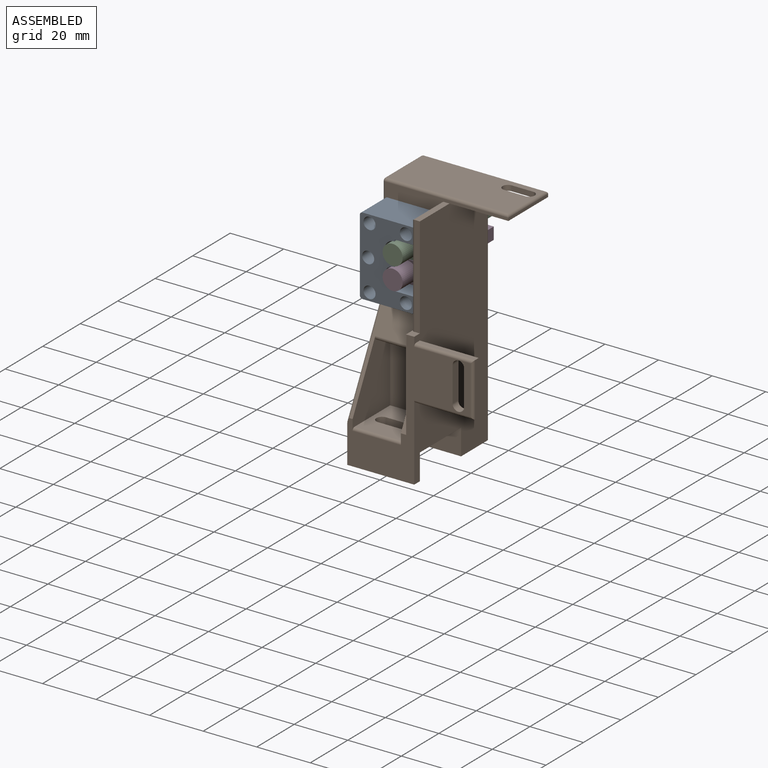
[diagram: assembled view]
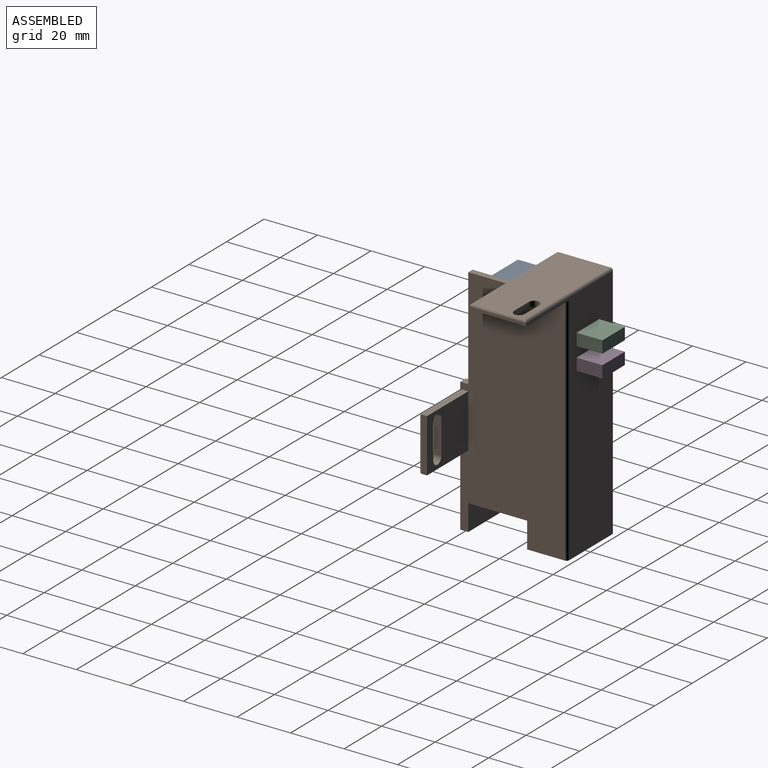
[diagram: assembled view, second angle]
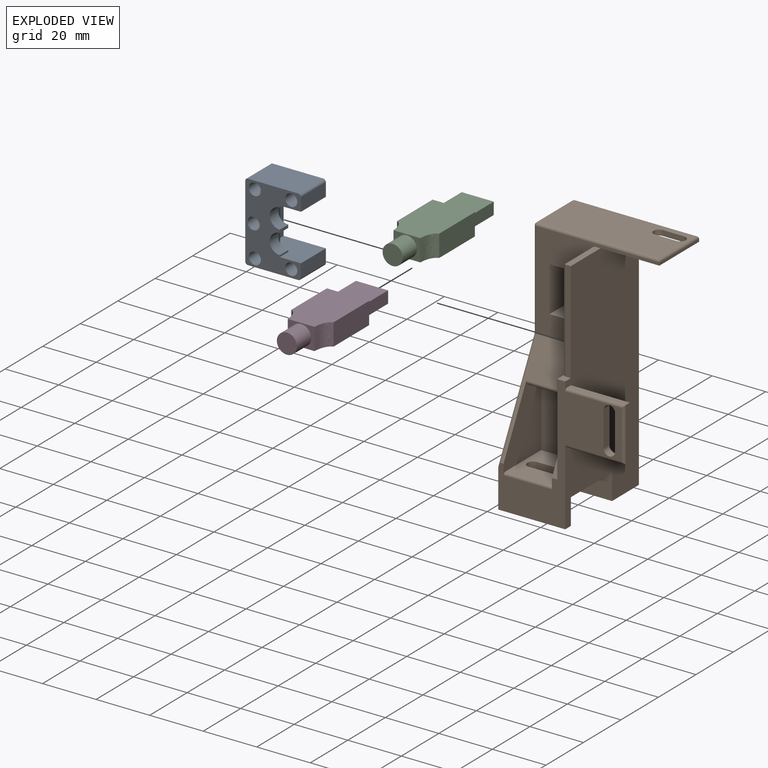
[diagram: exploded view]
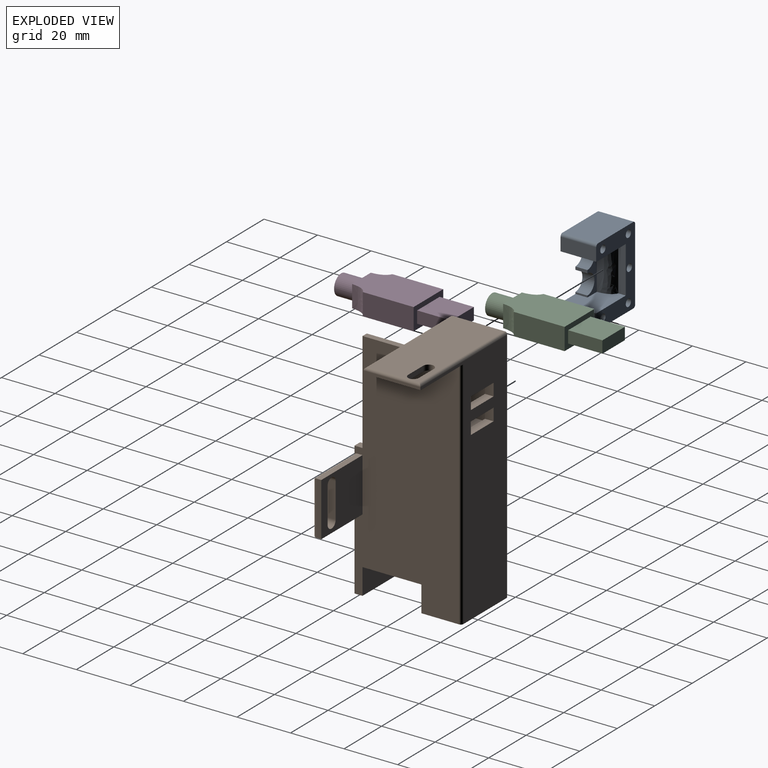
[diagram: exploded view, second angle]
ASSEMBLY  parts=4 mates=2
PART A: 36 faces, bbox 20.8x13.3x29.2 mm
  f0: extruded ~17.4x6mm, area 122.2mm2, adj f3,f5,f6,f14
  f1: plane 13.3x4.9mm, normal (-1,0,0), area 65.2mm2, adj f2,f3,f13,f34
  f2: plane 29.2x20.8mm, normal (0,-1,0), area 300.8mm2, adj f1,f3,f4,f5,f12,f14,f15,f16
  f3: plane 15.8x13.3mm, normal (0,0,-1), area 161.7mm2, adj f0,f1,f2,f6,f11,f13,f14
  f4: plane 13.3x4.9mm, normal (-1,0,0), area 65.2mm2, adj f2,f5,f13,f32
  f5: plane 15.8x13.3mm, normal (0,0,1), area 161.7mm2, adj f0,f2,f4,f6,f7,f13,f14
  f6: plane 17.4x5mm, normal (0,-1,0), area 42.8mm2, adj f0,f3,f5,f7,f8,f9,f10,f11
  f7: plane 4.5x0.65mm, normal (-1,0,0), area 2.9mm2, adj f5,f6,f8,f13
  f8: cylinder r=3.75mm len=7.5mm, axis (0,-1,0), area 53mm2, adj f6,f7,f9,f13
  f9: plane 4.5x1.1mm, normal (-1,0,0), area 5mm2, adj f6,f8,f10,f13
  f10: cylinder r=3.75mm len=7.5mm, axis (0,-1,0), area 53mm2, adj f6,f9,f11,f13
  f11: plane 4.5x0.65mm, normal (-1,0,0), area 2.9mm2, adj f3,f6,f10,f13
  f12: plane 27.2x13.3mm, normal (1,0,0), area 361.8mm2, adj f2,f13,f33,f35
  f13: plane 29.2x20.8mm, normal (0,1,0), area 345.3mm2, adj f1,f3,f4,f5,f7,f8,f9,f10
  f14: plane 17.4x2.8mm, normal (-1,0,0), area 48.7mm2, adj f0,f2,f3,f5
  f15: plane 18.8x13.3mm, normal (0,0,-1), area 250mm2, adj f2,f13,f32,f33
  f16: plane 18.8x13.3mm, normal (0,0,1), area 250mm2, adj f2,f13,f34,f35
  f17: cylinder r=2.25mm len=9.8mm, axis (0,1,0), area 138.5mm2, adj f13,f18
  f18: plane 4.5x4.5mm, normal (0,1,0), area 9.7mm2, adj f17,f31
  f19: cylinder r=2.25mm len=9.8mm, axis (0,1,0), area 138.5mm2, adj f13,f20
  f20: plane 4.5x4.5mm, normal (0,1,0), area 9.7mm2, adj f19,f30
  f21: cylinder r=2.25mm len=9.8mm, axis (0,1,0), area 138.5mm2, adj f13,f22
  f22: plane 4.5x4.5mm, normal (0,1,0), area 9.7mm2, adj f21,f29
  f23: cylinder r=2.25mm len=9.8mm, axis (0,1,0), area 138.5mm2, adj f13,f24
  f24: plane 4.5x4.5mm, normal (0,1,0), area 9.7mm2, adj f23,f28
  f25: cylinder r=2.25mm len=9.8mm, axis (0,1,0), area 138.5mm2, adj f13,f26
  f26: plane 4.5x4.5mm, normal (0,1,0), area 9.7mm2, adj f25,f27
  f27: cylinder r=1.4mm len=3.5mm, axis (0,1,0), area 30.8mm2, adj f2,f26
  f28: cylinder r=1.4mm len=3.5mm, axis (0,1,0), area 30.8mm2, adj f2,f24
  f29: cylinder r=1.4mm len=3.5mm, axis (0,1,0), area 30.8mm2, adj f2,f22
  f30: cylinder r=1.4mm len=3.5mm, axis (0,1,0), area 30.8mm2, adj f2,f20
  f31: cylinder r=1.4mm len=3.5mm, axis (0,1,0), area 30.8mm2, adj f2,f18
  f32: cylinder r=1mm len=13.3mm, axis (0,1,0), area 20.9mm2, adj f2,f4,f13,f15
  f33: cylinder r=1mm len=13.3mm, axis (0,1,0), area 20.9mm2, adj f2,f12,f13,f15
  f34: cylinder r=1mm len=13.3mm, axis (0,-1,0), area 20.9mm2, adj f1,f2,f13,f16
  f35: cylinder r=1mm len=13.3mm, axis (0,-1,0), area 20.9mm2, adj f2,f12,f13,f16
PART B: 68 faces, bbox 47x40.9x89.7 mm
  f0: plane 15.8x2mm, normal (0,0,1), area 31.6mm2, adj f3,f6,f26,f65
  f1: plane 49.9x46mm, normal (0,-1,0), area 736.8mm2, adj f2,f3,f4,f5,f8,f10,f30,f31
  f2: plane 36.4x21mm, normal (0,-0.89,0.46), area 385.1mm2, adj f1,f4,f6,f35,f37,f51,f60
  f3: plane 87.7x39mm, normal (1,0,0), area 3033.9mm2, adj f0,f1,f5,f7,f10,f23,f24,f25
  f4: plane 70.7x36.8mm, normal (-1,0,0), area 1142.2mm2, adj f1,f2,f5,f6,f9,f20,f22,f65
  f5: plane 4x3mm, normal (0,0,1), area 9.2mm2, adj f1,f3,f4,f26,f66
  f6: plane 46x36.3mm, normal (0,-1,0), area 518.7mm2, adj f0,f2,f4,f20,f21,f22,f44,f48
  f7: plane 25x15mm, normal (0,0,-1), area 374.6mm2, adj f3,f8,f19,f23,f55,f67
  f8: plane 88.7x39mm, normal (-1,0,0), area 2142.8mm2, adj f1,f7,f10,f23,f24,f25,f51,f52
  f9: plane 16.8x16mm, normal (0,-1,0), area 157.5mm2, adj f4,f11,f12,f13,f14,f15,f16,f17
  f10: plane 25x3mm, normal (0,0,-1), area 75mm2, adj f1,f3,f8,f24
  f11: plane 4.6x3.2mm, normal (-1,0,0), area 14.7mm2, adj f9,f12,f17,f19
  f12: plane 12.1x3.2mm, normal (0,0,1), area 38.7mm2, adj f9,f11,f13,f19
  f13: plane 4.6x3.2mm, normal (1,0,0), area 14.7mm2, adj f9,f12,f17,f19
  f14: plane 4.6x3.2mm, normal (-1,0,0), area 14.7mm2, adj f9,f15,f18,f19
  f15: plane 12.1x3.2mm, normal (0,0,1), area 38.7mm2, adj f9,f14,f16,f19
  f16: plane 4.6x3.2mm, normal (1,0,0), area 14.7mm2, adj f9,f15,f18,f19
  f17: plane 12.1x3.2mm, normal (0,0,-1), area 38.7mm2, adj f9,f11,f13,f19
  f18: plane 12.1x3.2mm, normal (0,0,-1), area 38.7mm2, adj f9,f14,f16,f19
  f19: plane 88.7x46mm, normal (0,1,0), area 1951.8mm2, adj f7,f11,f12,f13,f14,f15,f16,f17
  f20: plane 18x16mm, normal (0,0,1), area 288mm2, adj f4,f6,f9,f21
  f21: plane 18x16.8mm, normal (1,0,0), area 302.4mm2, adj f6,f9,f20,f22
  f22: plane 18x16mm, normal (0,0,-1), area 288mm2, adj f4,f6,f9,f21
  f23: plane 25x9.7mm, normal (0,-1,0), area 242.5mm2, adj f3,f7,f8,f25
  f24: plane 25x9.7mm, normal (0,1,0), area 242.5mm2, adj f3,f8,f10,f25
  f25: plane 25x22mm, normal (0,0,-1), area 492.5mm2, adj f3,f8,f23,f24,f40,f41,f42,f43
  f26: plane 37.8x2mm, normal (0,-1,0), area 75.6mm2, adj f0,f3,f5,f66
  f27: plane 22x20mm, normal (0,1,0), area 369.6mm2, adj f3,f28,f29,f30,f31,f32,f33,f34
  f28: plane 22x2mm, normal (0,0,1), area 44mm2, adj f3,f27,f34,f64
  f29: plane 22x2mm, normal (0,0,-1), area 44mm2, adj f3,f27,f34,f62
  f30: plane 13x3mm, normal (-1,0,0), area 39mm2, adj f1,f27,f31,f32
  f31: cylinder r=2.15mm len=4.3mm, axis (0,-1,0), area 20.3mm2, adj f1,f27,f30,f33
  f32: cylinder r=2.15mm len=4.3mm, axis (0,-1,0), area 20.3mm2, adj f1,f27,f30,f33
  f33: plane 13x3mm, normal (1,0,0), area 39mm2, adj f1,f27,f31,f32
  f34: plane 20x2mm, normal (1,0,0), area 40mm2, adj f27,f28,f29,f63
  f35: plane 27.46x20mm, normal (1,0,0), area 375.8mm2, adj f1,f2,f36,f38,f39,f60,f61
  f36: plane 19x18mm, normal (0,0,1), area 284.5mm2, adj f35,f37,f39,f40,f41,f42,f43,f61
  f37: plane 27.46x20mm, normal (-1,0,0), area 375.8mm2, adj f1,f2,f36,f38,f39,f60,f61
  f38: plane 18x7mm, normal (0,0,-1), area 125.9mm2, adj f35,f37,f39,f60
  f39: plane 25x18mm, normal (0,-1,0), area 450mm2, adj f35,f36,f37,f38
  f40: cylinder r=2.15mm len=4.3mm, axis (0,0,1), area 22.3mm2, adj f25,f36,f41,f42
  f41: plane 10x3.3mm, normal (0,-1,0), area 33mm2, adj f25,f36,f40,f43
  f42: plane 10x3.3mm, normal (0,1,0), area 33mm2, adj f25,f36,f40,f43
  f43: cylinder r=2.15mm len=4.3mm, axis (0,0,1), area 22.3mm2, adj f25,f36,f41,f42
  f44: plane 23x21.2mm, normal (0,0,-1), area 422mm2, adj f3,f6,f19,f45,f46,f47,f48,f49
  f45: cylinder r=2mm len=4mm, axis (0,0,-1), area 12.6mm2, adj f44,f46,f49,f50
  f46: plane 8x2mm, normal (0,-1,0), area 16mm2, adj f44,f45,f47,f50
  f47: cylinder r=2mm len=4mm, axis (0,0,-1), area 12.6mm2, adj f44,f46,f49,f50
  f48: plane 21.2x1mm, normal (1,0,0), area 21.2mm2, adj f6,f19,f44,f58
  f49: plane 8x2mm, normal (0,1,0), area 16mm2, adj f44,f45,f47,f50
  f50: plane 45x19.2mm, normal (0,0,1), area 819.4mm2, adj f45,f46,f47,f49,f54,f56,f58,f59
  f51: cylinder r=1mm len=38.8mm, axis (0,0.46,0.89), area 65.6mm2, adj f1,f2,f8,f52
  f52: cylinder r=1mm len=36.54mm, axis (0,0,1), area 57.2mm2, adj f6,f8,f51,f53
  f53: sphere r=1mm, area 1.6mm2, adj f52,f54,f56
  f54: cylinder r=1mm len=19.2mm, axis (0,1,0), area 30.2mm2, adj f8,f50,f53,f57
  f55: cylinder r=1mm len=88.7mm, axis (0,0,-1), area 139.3mm2, adj f7,f8,f19,f57
  f56: cylinder r=1mm len=46mm, axis (1,0,0), area 71.7mm2, adj f6,f50,f53,f58
  f57: sphere r=1mm, area 1.6mm2, adj f54,f55,f59
  f58: cylinder r=1mm len=21.2mm, axis (0,-1,0), area 32.2mm2, adj f48,f50,f56,f59
  f59: cylinder r=1mm len=46mm, axis (-1,0,0), area 71.7mm2, adj f19,f50,f57,f58
  f60: cylinder r=1mm len=18mm, axis (1,0,0), area 36.9mm2, adj f2,f35,f37,f38
  f61: cylinder r=1mm len=18mm, axis (-1,0,0), area 28.3mm2, adj f1,f35,f36,f37
  f62: cylinder r=1mm len=22mm, axis (1,0,0), area 34mm2, adj f1,f3,f29,f63
  f63: cylinder r=1mm len=20mm, axis (0,0,1), area 30.3mm2, adj f1,f34,f62,f64
  f64: cylinder r=1mm len=22mm, axis (-1,0,0), area 34mm2, adj f1,f3,f28,f63
  f65: cylinder r=1mm len=15.8mm, axis (0,-1,0), area 24.2mm2, adj f0,f4,f6,f66
  f66: cylinder r=1mm len=37.8mm, axis (0,0,1), area 58.8mm2, adj f4,f5,f26,f65
  f67: cylinder r=1mm len=87.7mm, axis (0,0,1), area 137.8mm2, adj f3,f7,f19,f44
PART C: 15 faces, bbox 15.8x45.4x8.2 mm
  f0: plane 25x15.8mm, normal (0,0,1), area 369.3mm2, adj f2,f8,f9,f10,f11,f12
  f1: plane 25x15.8mm, normal (0,0,-1), area 369.3mm2, adj f2,f8,f9,f10,f11,f12
  f2: plane 10x8.2mm, normal (0,1,0), area 37.8mm2, adj f0,f1,f11,f12,f13
  f3: plane 12.8x12mm, normal (0,0,1), area 153.6mm2, adj f4,f6,f7,f10
  f4: plane 12.8x4.5mm, normal (-1,0,0), area 57.6mm2, adj f3,f5,f7,f10
  f5: plane 12.8x12mm, normal (0,0,-1), area 153.6mm2, adj f4,f6,f7,f10
  f6: plane 12.8x4.5mm, normal (1,0,0), area 57.6mm2, adj f3,f5,f7,f10
  f7: plane 12x4.5mm, normal (0,-1,0), area 54mm2, adj f3,f4,f5,f6
  f8: plane 19x8.2mm, normal (-1,0,0), area 155.8mm2, adj f0,f1,f10,f12
  f9: plane 19x8.2mm, normal (1,0,0), area 155.8mm2, adj f0,f1,f10,f11
  f10: plane 15.8x8.2mm, normal (0,-1,0), area 75.6mm2, adj f0,f1,f3,f4,f5,f6,f8,f9
  f11: extruded ~8.2x6mm, area 57.6mm2, adj f0,f1,f2,f9
  f12: extruded ~8.2x6mm, area 57.6mm2, adj f0,f1,f2,f8
  f13: cylinder r=3.75mm len=7.6mm, axis (0,-1,0), area 179.1mm2, adj f2,f14
  f14: plane 7.5x7.5mm, normal (0,1,0), area 44.2mm2, adj f13
PART D: same geometry as C
PLACE A rot(axis=(0,0,-1),180deg) t=(1.55,-17.52,39.59)mm
PLACE B t=(0.14,0.21,1.36)mm fixed
PLACE C rot(axis=(1,0,0),180deg) t=(1.64,-2.99,30.51)mm
PLACE D rot(axis=(1,0,0),180deg) t=(1.64,-2.99,22.11)mm
MATE fastened C.f13 <-> B.f9  axis (0,1,0) through (1.64,-2.99,30.51)mm
MATE fastened D.f13 <-> B.f9  axis (0,1,0) through (1.64,-2.99,22.11)mm
